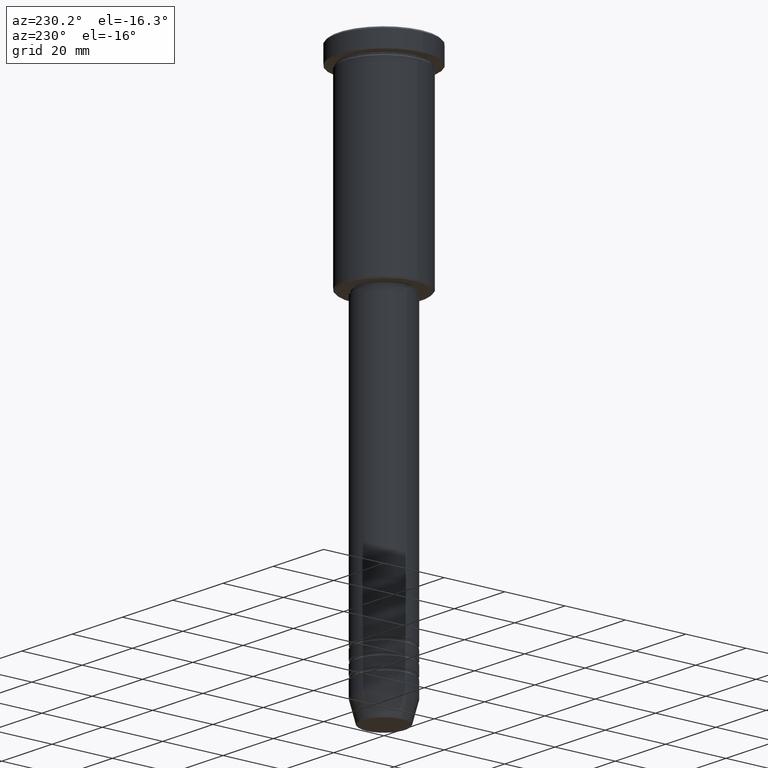
[diagram: clean part render]
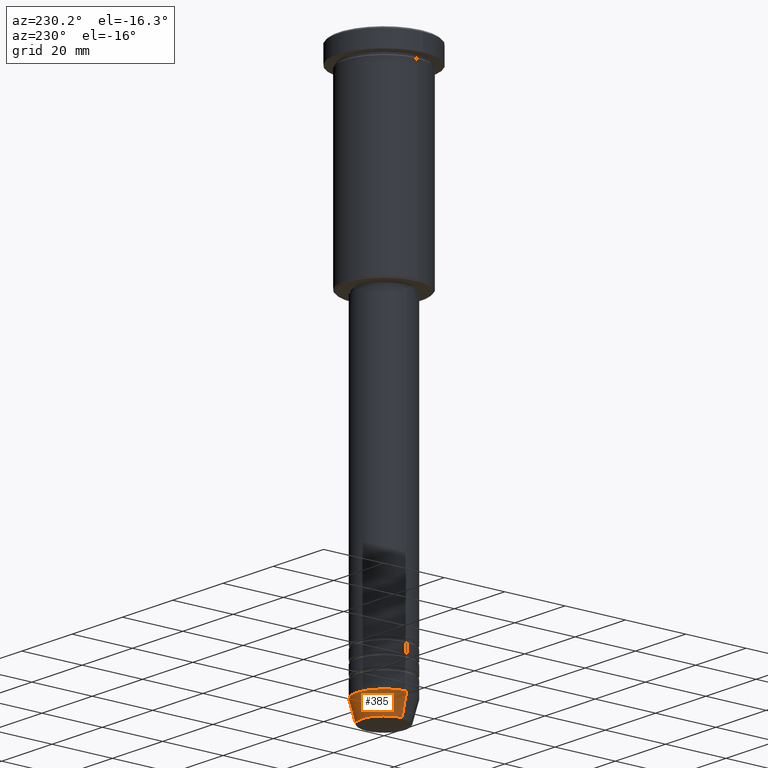
[diagram: same view with one face highlighted and labeled with its STEP entity id]
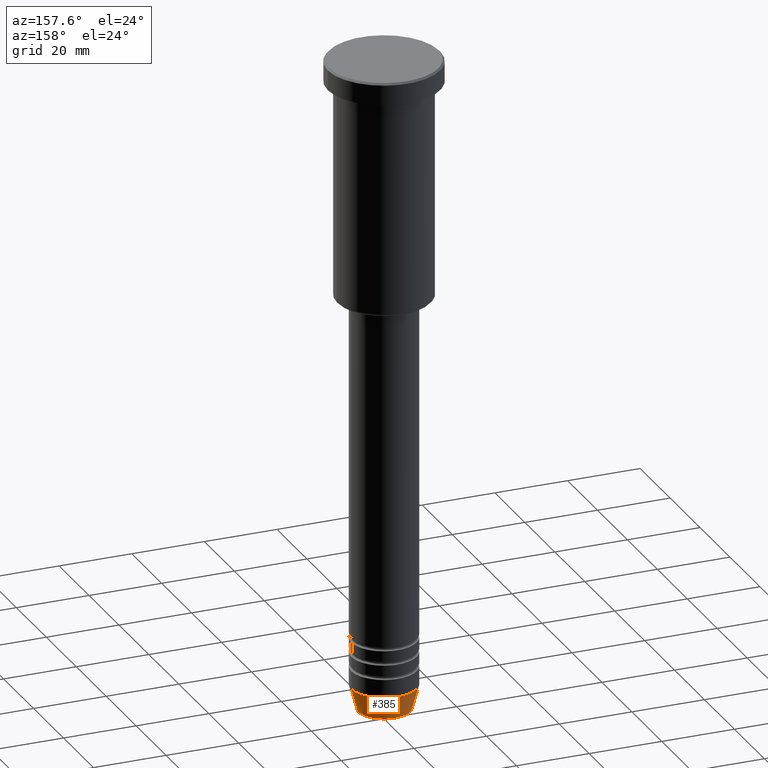
[diagram: same view with one face highlighted and labeled with its STEP entity id]
A machine part, auxiliary view. The second image highlights one B-rep face of the part: STEP entity #385.
A second angle (auxiliary view) of the same face is appended — the face is thin or edge-on in the first view.
In plain terms, the highlighted conical surface has half-angle 15 deg.
Its self-contained STEP definition (entity closure, byte-faithful):
#21 = DIRECTION ( 'NONE',  ( 1.000000000000000000, 0.000000000000000000, 0.000000000000000000 ) ) ;
#60 = EDGE_CURVE ( 'NONE', #1099, #256, #862, .T. ) ;
#61 = CARTESIAN_POINT ( 'NONE',  ( 0.000000000000000000, 0.000000000000000000, -174.0000000000000000 ) ) ;
#92 = VERTEX_POINT ( 'NONE', #1095 ) ;
#113 = CARTESIAN_POINT ( 'NONE',  ( 9.000000000000000000, 0.000000000000000000, -174.0000000000000000 ) ) ;
#133 = ORIENTED_EDGE ( 'NONE', *, *, #252, .F. ) ;
#136 = ORIENTED_EDGE ( 'NONE', *, *, #725, .T. ) ;
#192 = DIRECTION ( 'NONE',  ( 1.000000000000000000, 0.000000000000000000, 0.000000000000000000 ) ) ;
#202 = AXIS2_PLACEMENT_3D ( 'NONE', #981, #629, #192 ) ;
#221 = AXIS2_PLACEMENT_3D ( 'NONE', #61, #854, #423 ) ;
#252 = EDGE_CURVE ( 'NONE', #1099, #856, #849, .T. ) ;
#256 = VERTEX_POINT ( 'NONE', #582 ) ;
#281 = AXIS2_PLACEMENT_3D ( 'NONE', #476, #577, #21 ) ;
#285 = CARTESIAN_POINT ( 'NONE',  ( -9.000000000000000000, 1.102182119232617714E-15, -174.0000000000000000 ) ) ;
#378 = CARTESIAN_POINT ( 'NONE',  ( 9.000000000000000000, 0.000000000000000000, -174.0000000000000000 ) ) ;
#385 = ADVANCED_FACE ( 'NONE', ( #497 ), #1032, .T. ) ;
#423 = DIRECTION ( 'NONE',  ( 1.000000000000000000, 0.000000000000000000, 0.000000000000000000 ) ) ;
#432 = VECTOR ( 'NONE', #809, 1000.000000000000000 ) ;
#476 = CARTESIAN_POINT ( 'NONE',  ( 0.000000000000000000, 0.000000000000000000, -174.0000000000000000 ) ) ;
#497 = FACE_OUTER_BOUND ( 'NONE', #942, .T. ) ;
#569 = EDGE_CURVE ( 'NONE', #856, #92, #1172, .T. ) ;
#577 = DIRECTION ( 'NONE',  ( -0.000000000000000000, -0.000000000000000000, 1.000000000000000000 ) ) ;
#582 = CARTESIAN_POINT ( 'NONE',  ( -7.223655072137189492, 9.934123627281765110E-16, -180.6294095225512706 ) ) ;
#629 = DIRECTION ( 'NONE',  ( -0.000000000000000000, -0.000000000000000000, 1.000000000000000000 ) ) ;
#725 = EDGE_CURVE ( 'NONE', #256, #92, #727, .T. ) ;
#727 = LINE ( 'NONE', #285, #432 ) ;
#809 = DIRECTION ( 'NONE',  ( -0.2588190451025213501, 3.169619151431772337E-17, 0.9659258262890680902 ) ) ;
#849 = LINE ( 'NONE', #113, #1090 ) ;
#854 = DIRECTION ( 'NONE',  ( -0.000000000000000000, -0.000000000000000000, 1.000000000000000000 ) ) ;
#856 = VERTEX_POINT ( 'NONE', #378 ) ;
#862 = CIRCLE ( 'NONE', #202, 7.223655072137188604 ) ;
#878 = ORIENTED_EDGE ( 'NONE', *, *, #569, .F. ) ;
#942 = EDGE_LOOP ( 'NONE', ( #954, #136, #878, #133 ) ) ;
#954 = ORIENTED_EDGE ( 'NONE', *, *, #60, .T. ) ;
#981 = CARTESIAN_POINT ( 'NONE',  ( 0.000000000000000000, 0.000000000000000000, -180.6294095225512706 ) ) ;
#1032 = CONICAL_SURFACE ( 'NONE', #221, 9.000000000000000000, 0.2617993877991500740 ) ;
#1090 = VECTOR ( 'NONE', #1126, 1000.000000000000000 ) ;
#1095 = CARTESIAN_POINT ( 'NONE',  ( -9.000000000000000000, 1.102182119232617714E-15, -174.0000000000000000 ) ) ;
#1099 = VERTEX_POINT ( 'NONE', #1153 ) ;
#1126 = DIRECTION ( 'NONE',  ( 0.2588190451025213501, 0.000000000000000000, 0.9659258262890680902 ) ) ;
#1153 = CARTESIAN_POINT ( 'NONE',  ( 7.223655072137188604, 0.000000000000000000, -180.6294095225512706 ) ) ;
#1172 = CIRCLE ( 'NONE', #281, 9.000000000000000000 ) ;